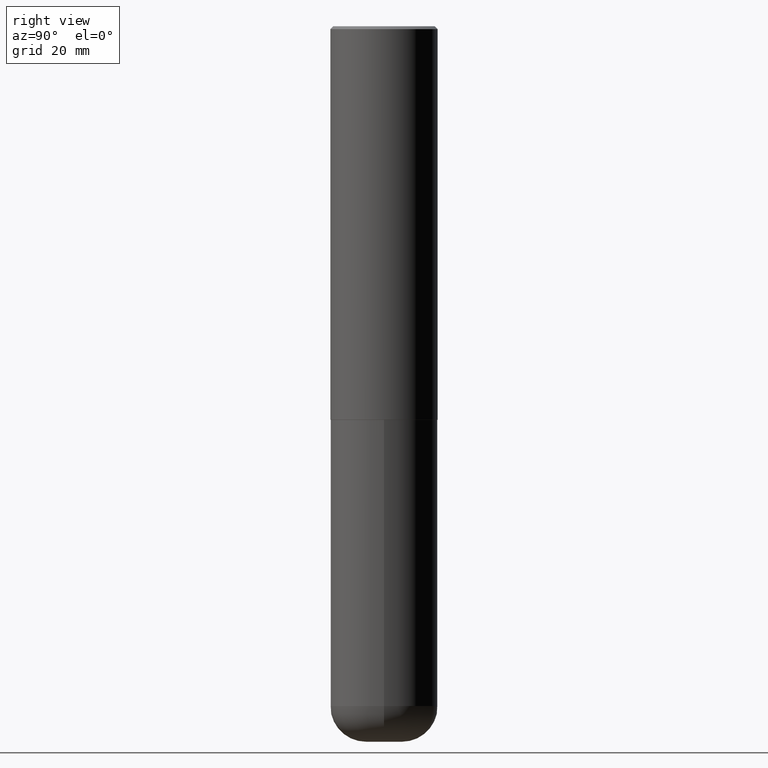
[diagram: clean part render]
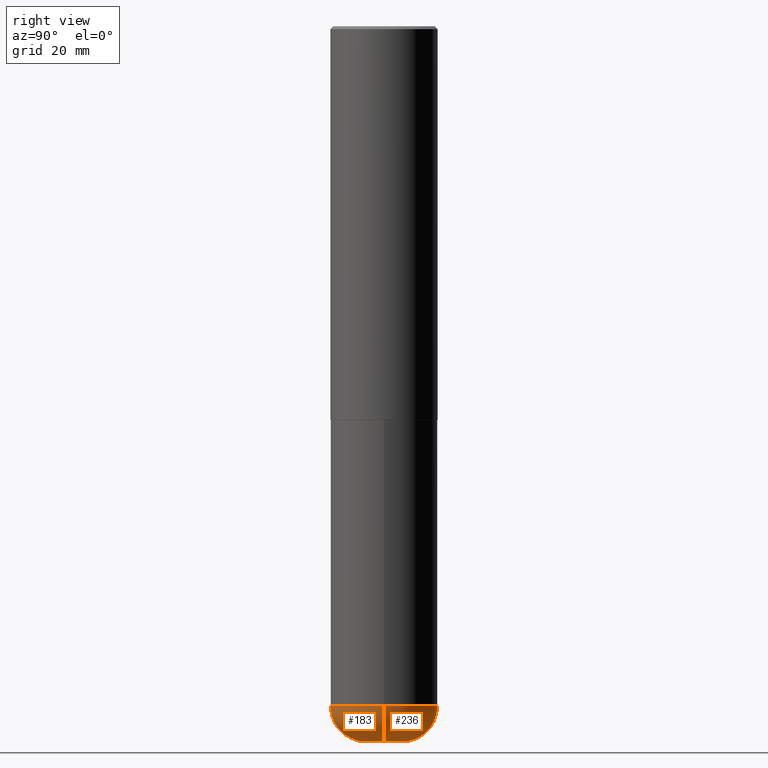
[diagram: same view with one multi-face feature highlighted, each face labeled with its STEP entity id]
A machine part, right view. The highlighted faces form ONE feature: a constant-radius fillet chain: 2 tangent blend faces with common blend radius 6.35 mm. The faces share edges in the B-rep.
Their STEP definitions:
[1] entity #236 (Torus):
#5 = DIRECTION ( 'NONE',  ( 7.105427357601001859E-15, 1.000000000000000000, -3.491481338843145583E-15 ) ) ;
#24 = CARTESIAN_POINT ( 'NONE',  ( 0.1250000000000000555, -1.833027702892651638E-14, -5.000000000000000888 ) ) ;
#30 = EDGE_LOOP ( 'NONE', ( #343, #350, #399, #47 ) ) ;
#42 = CARTESIAN_POINT ( 'NONE',  ( 1.161597682937940108E-28, -1.658453635950494339E-14, -4.750000000000000000 ) ) ;
#46 = CIRCLE ( 'NONE', #174, 0.2500000000000003886 ) ;
#47 = ORIENTED_EDGE ( 'NONE', *, *, #331, .F. ) ;
#56 = CARTESIAN_POINT ( 'NONE',  ( 0.3750000000000002220, -1.920314736363729341E-14, -4.750000000000000000 ) ) ;
#58 = AXIS2_PLACEMENT_3D ( 'NONE', #309, #5, #394 ) ;
#85 = CIRCLE ( 'NONE', #324, 0.3749999999999999445 ) ;
#92 = EDGE_CURVE ( 'NONE', #138, #364, #345, .T. ) ;
#138 = VERTEX_POINT ( 'NONE', #381 ) ;
#163 = DIRECTION ( 'NONE',  ( -6.982962677686266711E-15, -1.000000000000000000, 3.491481338843145583E-15 ) ) ;
#170 = DIRECTION ( 'NONE',  ( 1.000000000000000000, -6.982962677686270655E-15, 4.883557194083114583E-29 ) ) ;
#174 = AXIS2_PLACEMENT_3D ( 'NONE', #192, #163, #417 ) ;
#188 = EDGE_CURVE ( 'NONE', #328, #364, #85, .T. ) ;
#192 = CARTESIAN_POINT ( 'NONE',  ( 0.1250000000000000278, -1.745740669421572673E-14, -4.750000000000000000 ) ) ;
#218 = DIRECTION ( 'NONE',  ( 1.000000000000000000, -6.982962677686275388E-15, 0.000000000000000000 ) ) ;
#234 = VERTEX_POINT ( 'NONE', #24 ) ;
#236 = ADVANCED_FACE ( 'NONE', ( #397 ), #297, .T. ) ;
#254 = DIRECTION ( 'NONE',  ( -2.445468806185136597E-29, 3.491481338843145583E-15, 1.000000000000000000 ) ) ;
#259 = CARTESIAN_POINT ( 'NONE',  ( 1.161597682937940108E-28, -1.658453635950494339E-14, -4.750000000000000000 ) ) ;
#286 = CARTESIAN_POINT ( 'NONE',  ( -0.3750000000000002220, -1.392000110040456296E-14, -4.750000000000000000 ) ) ;
#288 = DIRECTION ( 'NONE',  ( -2.445468806185136597E-29, 3.491481338843145583E-15, 1.000000000000000000 ) ) ;
#297 = TOROIDAL_SURFACE ( 'NONE', #398, 0.1250000000000000278, 0.2500000000000003886 ) ;
#298 = DIRECTION ( 'NONE',  ( 1.000000000000000000, -6.982962677686269077E-15, 0.000000000000000000 ) ) ;
#309 = CARTESIAN_POINT ( 'NONE',  ( -0.1250000000000000278, -1.569635793980481500E-14, -4.750000000000000000 ) ) ;
#315 = CARTESIAN_POINT ( 'NONE',  ( 1.222734403092568523E-28, -1.745740669421573304E-14, -5.000000000000000888 ) ) ;
#324 = AXIS2_PLACEMENT_3D ( 'NONE', #42, #254, #298 ) ;
#328 = VERTEX_POINT ( 'NONE', #56 ) ;
#331 = EDGE_CURVE ( 'NONE', #234, #328, #46, .T. ) ;
#343 = ORIENTED_EDGE ( 'NONE', *, *, #344, .T. ) ;
#344 = EDGE_CURVE ( 'NONE', #234, #138, #368, .T. ) ;
#345 = CIRCLE ( 'NONE', #58, 0.2500000000000003886 ) ;
#350 = ORIENTED_EDGE ( 'NONE', *, *, #92, .T. ) ;
#364 = VERTEX_POINT ( 'NONE', #286 ) ;
#368 = CIRCLE ( 'NONE', #392, 0.1250000000000000555 ) ;
#381 = CARTESIAN_POINT ( 'NONE',  ( -0.1250000000000000555, -1.524461468746008302E-14, -5.000000000000000888 ) ) ;
#389 = DIRECTION ( 'NONE',  ( -2.445468806185136597E-29, 3.491481338843145583E-15, 1.000000000000000000 ) ) ;
#392 = AXIS2_PLACEMENT_3D ( 'NONE', #315, #288, #218 ) ;
#394 = DIRECTION ( 'NONE',  ( -1.000000000000000000, 7.105427357601000281E-15, 0.000000000000000000 ) ) ;
#397 = FACE_OUTER_BOUND ( 'NONE', #30, .T. ) ;
#398 = AXIS2_PLACEMENT_3D ( 'NONE', #259, #389, #170 ) ;
#399 = ORIENTED_EDGE ( 'NONE', *, *, #188, .F. ) ;
#417 = DIRECTION ( 'NONE',  ( 1.000000000000000000, -6.982962677686259611E-15, 0.000000000000000000 ) ) ;
[2] entity #183 (Torus):
#5 = DIRECTION ( 'NONE',  ( 7.105427357601001859E-15, 1.000000000000000000, -3.491481338843145583E-15 ) ) ;
#24 = CARTESIAN_POINT ( 'NONE',  ( 0.1250000000000000555, -1.833027702892651638E-14, -5.000000000000000888 ) ) ;
#46 = CIRCLE ( 'NONE', #174, 0.2500000000000003886 ) ;
#55 = EDGE_LOOP ( 'NONE', ( #208, #332, #108, #113 ) ) ;
#56 = CARTESIAN_POINT ( 'NONE',  ( 0.3750000000000002220, -1.920314736363729341E-14, -4.750000000000000000 ) ) ;
#58 = AXIS2_PLACEMENT_3D ( 'NONE', #309, #5, #394 ) ;
#79 = CARTESIAN_POINT ( 'NONE',  ( 1.161597682937940108E-28, -1.658453635950494339E-14, -4.750000000000000000 ) ) ;
#92 = EDGE_CURVE ( 'NONE', #138, #364, #345, .T. ) ;
#103 = TOROIDAL_SURFACE ( 'NONE', #329, 0.1250000000000000278, 0.2500000000000003886 ) ;
#108 = ORIENTED_EDGE ( 'NONE', *, *, #331, .T. ) ;
#109 = DIRECTION ( 'NONE',  ( 1.000000000000000000, -6.982962677686269077E-15, 0.000000000000000000 ) ) ;
#113 = ORIENTED_EDGE ( 'NONE', *, *, #146, .F. ) ;
#126 = CARTESIAN_POINT ( 'NONE',  ( 1.161597682937940108E-28, -1.658453635950494339E-14, -4.750000000000000000 ) ) ;
#133 = DIRECTION ( 'NONE',  ( 1.000000000000000000, -6.982962677686275388E-15, 0.000000000000000000 ) ) ;
#138 = VERTEX_POINT ( 'NONE', #381 ) ;
#146 = EDGE_CURVE ( 'NONE', #364, #328, #200, .T. ) ;
#163 = DIRECTION ( 'NONE',  ( -6.982962677686266711E-15, -1.000000000000000000, 3.491481338843145583E-15 ) ) ;
#174 = AXIS2_PLACEMENT_3D ( 'NONE', #192, #163, #417 ) ;
#183 = ADVANCED_FACE ( 'NONE', ( #280 ), #103, .T. ) ;
#187 = DIRECTION ( 'NONE',  ( 1.000000000000000000, -6.982962677686270655E-15, 4.883557194083114583E-29 ) ) ;
#192 = CARTESIAN_POINT ( 'NONE',  ( 0.1250000000000000278, -1.745740669421572673E-14, -4.750000000000000000 ) ) ;
#200 = CIRCLE ( 'NONE', #247, 0.3749999999999999445 ) ;
#208 = ORIENTED_EDGE ( 'NONE', *, *, #92, .F. ) ;
#234 = VERTEX_POINT ( 'NONE', #24 ) ;
#243 = AXIS2_PLACEMENT_3D ( 'NONE', #348, #251, #133 ) ;
#247 = AXIS2_PLACEMENT_3D ( 'NONE', #79, #341, #109 ) ;
#251 = DIRECTION ( 'NONE',  ( -2.445468806185136597E-29, 3.491481338843145583E-15, 1.000000000000000000 ) ) ;
#262 = CIRCLE ( 'NONE', #243, 0.1250000000000000555 ) ;
#280 = FACE_OUTER_BOUND ( 'NONE', #55, .T. ) ;
#286 = CARTESIAN_POINT ( 'NONE',  ( -0.3750000000000002220, -1.392000110040456296E-14, -4.750000000000000000 ) ) ;
#309 = CARTESIAN_POINT ( 'NONE',  ( -0.1250000000000000278, -1.569635793980481500E-14, -4.750000000000000000 ) ) ;
#328 = VERTEX_POINT ( 'NONE', #56 ) ;
#329 = AXIS2_PLACEMENT_3D ( 'NONE', #126, #360, #187 ) ;
#331 = EDGE_CURVE ( 'NONE', #234, #328, #46, .T. ) ;
#332 = ORIENTED_EDGE ( 'NONE', *, *, #406, .T. ) ;
#341 = DIRECTION ( 'NONE',  ( -2.445468806185136597E-29, 3.491481338843145583E-15, 1.000000000000000000 ) ) ;
#345 = CIRCLE ( 'NONE', #58, 0.2500000000000003886 ) ;
#348 = CARTESIAN_POINT ( 'NONE',  ( 1.222734403092568523E-28, -1.745740669421573304E-14, -5.000000000000000888 ) ) ;
#360 = DIRECTION ( 'NONE',  ( -2.445468806185136597E-29, 3.491481338843145583E-15, 1.000000000000000000 ) ) ;
#364 = VERTEX_POINT ( 'NONE', #286 ) ;
#381 = CARTESIAN_POINT ( 'NONE',  ( -0.1250000000000000555, -1.524461468746008302E-14, -5.000000000000000888 ) ) ;
#394 = DIRECTION ( 'NONE',  ( -1.000000000000000000, 7.105427357601000281E-15, 0.000000000000000000 ) ) ;
#406 = EDGE_CURVE ( 'NONE', #138, #234, #262, .T. ) ;
#417 = DIRECTION ( 'NONE',  ( 1.000000000000000000, -6.982962677686259611E-15, 0.000000000000000000 ) ) ;